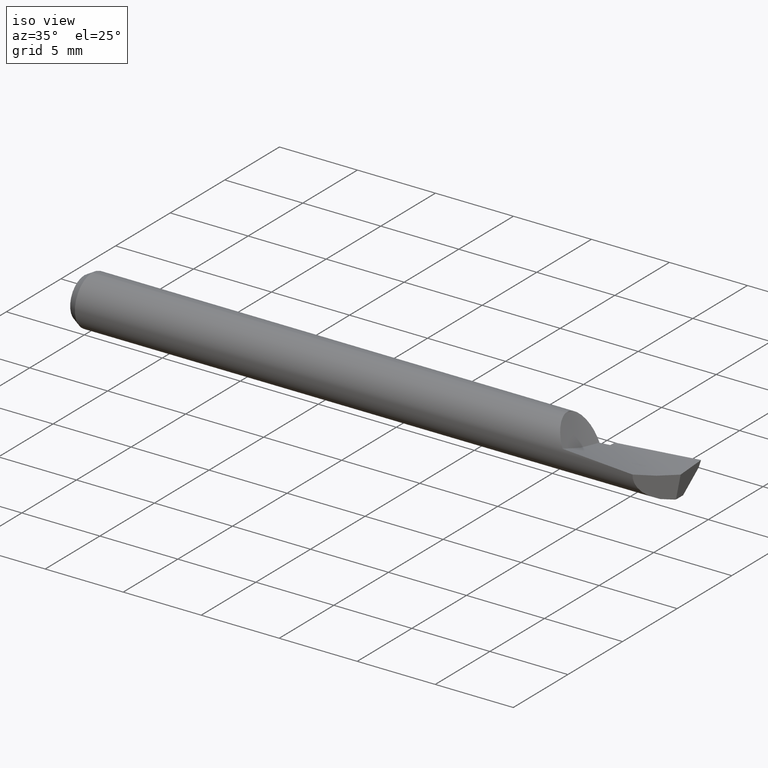
[diagram: clean part render]
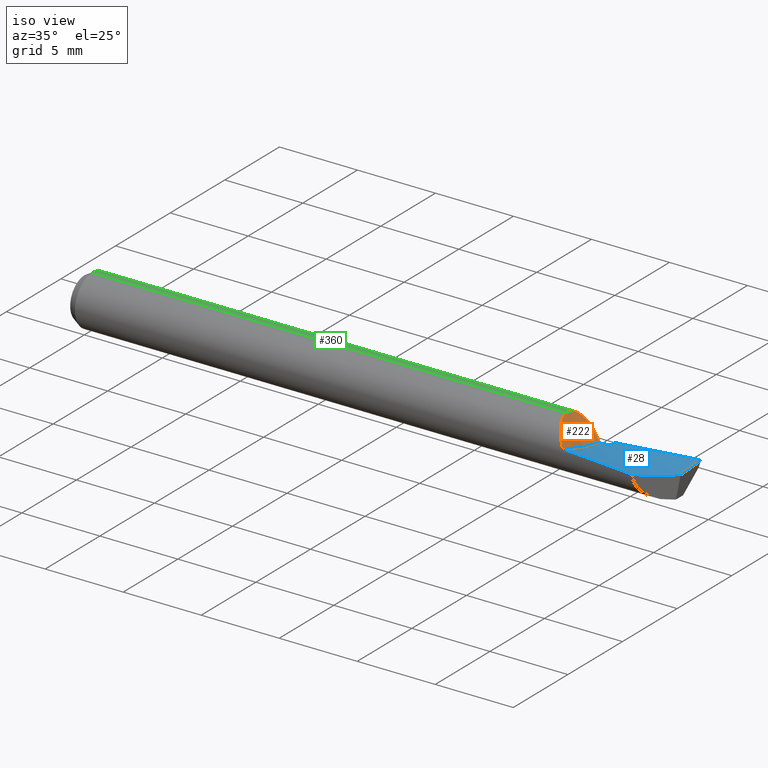
[diagram: same view with three faces highlighted in distinct colors, each labeled with its STEP entity id]
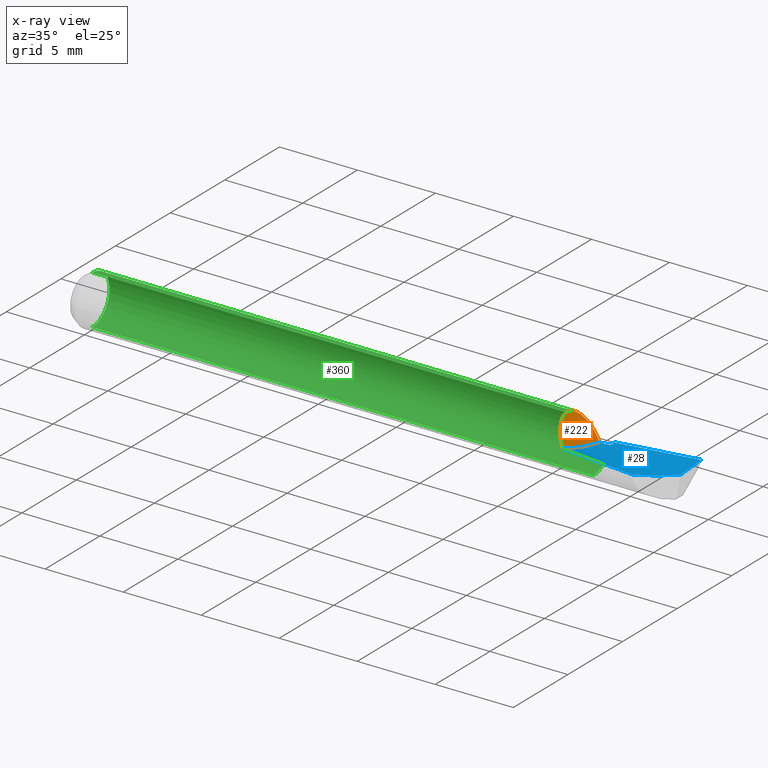
[diagram: x-ray of the same camera — body ghosted, the three highlighted faces saturated]
A machine part, iso view with three faces highlighted in distinct colors.
The next image is the same camera in x-ray (body ghosted, the three faces saturated) — at least one of them is partly hidden behind the body in this view.
Their STEP definitions:

[orange] entity #222 — the highlighted face is a freeform B-spline surface patch.
#10 = CARTESIAN_POINT ( 'NONE',  ( 1.215341234382241620, 0.0004982669162004980945, 0.06239850635911061566 ) ) ;
#11 = VERTEX_POINT ( 'NONE', #286 ) ;
#12 = CARTESIAN_POINT ( 'NONE',  ( 1.215062640720519171, 0.002482261465665115772, 0.06235255943866734735 ) ) ;
#14 = CARTESIAN_POINT ( 'NONE',  ( 1.233516715122231489, 0.05873520941118057226, 0.02125097969850281085 ) ) ;
#24 = CARTESIAN_POINT ( 'NONE',  ( 1.244636479562499565, 0.06229732504898780748, 0.003580627249325354054 ) ) ;
#25 = CARTESIAN_POINT ( 'NONE',  ( 1.228938620844154173, -0.03954811019755048729, 0.04826782345320551615 ) ) ;
#32 = CARTESIAN_POINT ( 'NONE',  ( 1.252629383386663964, -0.02240979440101401043, -0.002553096178516221261 ) ) ;
#39 = ORIENTED_EDGE ( 'NONE', *, *, #424, .F. ) ;
#53 = CARTESIAN_POINT ( 'NONE',  ( 1.214999999999999858, 0.02656827298811766797, 0.05646137503133320107 ) ) ;
#55 = CARTESIAN_POINT ( 'NONE',  ( 1.215161247682621681, 0.001740713131355195020, 0.06237917047363608636 ) ) ;
#57 = CARTESIAN_POINT ( 'NONE',  ( 1.231911170695153324, 0.05764547565928701545, 0.02389072257668140714 ) ) ;
#65 = EDGE_CURVE ( 'NONE', #518, #89, #414, .T. ) ;
#73 = CARTESIAN_POINT ( 'NONE',  ( 1.242485752543471822, 0.06202582730458720134, 0.006956310956432748376 ) ) ;
#74 = CARTESIAN_POINT ( 'NONE',  ( 1.249835296245995098, -0.06108238399090171883, 0.01275548376142715545 ) ) ;
#78 = CARTESIAN_POINT ( 'NONE',  ( 1.231210198614224982, -0.04348049364634020558, 0.04498844483085986945 ) ) ;
#80 = CARTESIAN_POINT ( 'NONE',  ( 1.251846361524282303, 0.06201947540203197468, -0.007712021355594155143 ) ) ;
#81 = CARTESIAN_POINT ( 'NONE',  ( 1.228601843419931727, -0.03895000380799452933, 0.04875114253357506339 ) ) ;
#84 = CARTESIAN_POINT ( 'NONE',  ( 1.214999999999997859, 0.03552124287360624438, 0.05262055221089354667 ) ) ;
#89 = VERTEX_POINT ( 'NONE', #74 ) ;
#90 = EDGE_CURVE ( 'NONE', #89, #11, #445, .T. ) ;
#99 = VERTEX_POINT ( 'NONE', #436 ) ;
#103 = CARTESIAN_POINT ( 'NONE',  ( 1.230937209793407039, 0.05695609247891080668, 0.02549987211742123921 ) ) ;
#112 = CARTESIAN_POINT ( 'NONE',  ( 1.256278768973220217, 0.06077601470096085506, -0.01456594108188619639 ) ) ;
#114 = CARTESIAN_POINT ( 'NONE',  ( 1.244214353131710027, 0.06225665313612734758, 0.004241600538668392761 ) ) ;
#120 = B_SPLINE_CURVE_WITH_KNOTS ( 'NONE', 3,
 ( #331, #144, #376, #53 ),
 .UNSPECIFIED., .F., .F.,
 ( 4, 4 ),
 ( 0.000000000000000000, 1.000000000000000000 ),
 .UNSPECIFIED. ) ;
#144 = CARTESIAN_POINT ( 'NONE',  ( 1.214999999999999858, 0.01083956874227856755, 0.06037428967426877735 ) ) ;
#146 = CARTESIAN_POINT ( 'NONE',  ( 1.229120050926931107, 0.05549586416279576190, 0.02854872319384249915 ) ) ;
#159 = CARTESIAN_POINT ( 'NONE',  ( 1.249835296245995098, -0.06108238399090171883, 0.01275548376142715545 ) ) ;
#170 = CARTESIAN_POINT ( 'NONE',  ( 1.215416354742557825, -3.096158160012943776E-07, 0.06240138776565496564 ) ) ;
#176 = B_SPLINE_CURVE_WITH_KNOTS ( 'NONE', 3,
 ( #191, #333, #372, #238, #193, #241, #547, #146, #329, #103, #288, #197, #466, #57, #14, #370, #549, #252, #381, #73, #259, #114, #555, #24, #305, #390, #80, #112, #561, #346 ),
 .UNSPECIFIED., .F., .F.,
 ( 4, 2, 2, 2, 1, 1, 1, 2, 2, 2, 2, 1, 1, 1, 2, 2, 2, 4 ),
 ( 0.000000000000000000, 0.2500000000000091593, 0.3750000000000144329, 0.4375000000000178191, 0.4687500000000195399, 0.4843750000000187628, 0.4921875000000165978, 0.4960937500000154876, 0.5000000000000144329, 0.6249999999999950040, 0.6874999999999875655, 0.7187499999999837907, 0.7343749999999819034, 0.7421874999999810152, 0.7460937499999804601, 0.7499999999999799050, 0.8749999999999900080, 1.000000000000000000 ),
 .UNSPECIFIED. ) ;
#186 = CARTESIAN_POINT ( 'NONE',  ( 1.215000000000000302, 0.07563097999572351848, 0.04879436779900076654 ) ) ;
#191 = CARTESIAN_POINT ( 'NONE',  ( 1.214999999999999858, 0.02656827298811766797, 0.05646137503133320107 ) ) ;
#193 = CARTESIAN_POINT ( 'NONE',  ( 1.223683417556308273, 0.04962681717030364981, 0.03804160079550419904 ) ) ;
#197 = CARTESIAN_POINT ( 'NONE',  ( 1.231665086290065991, 0.05747591180185984000, 0.02429602497390106683 ) ) ;
#201 = CARTESIAN_POINT ( 'NONE',  ( 1.215416354742557825, -3.096158160012943776E-07, 0.06240138776565496564 ) ) ;
#222 = ADVANCED_FACE ( 'NONE', ( #365 ), #225, .T. ) ;
#225 = B_SPLINE_SURFACE_WITH_KNOTS ( 'NONE', 1, 3, ( 
 ( #309, #488, #84, #186 ),
 ( #277, #267, #320, #355 ) ),
 .UNSPECIFIED., .F., .F., .F.,
 ( 2, 2 ),
 ( 4, 4 ),
 ( 0.000000000000000000, 1.000000000000000000 ),
 ( 0.01047409669607552753, 0.01355842305451047079 ),
 .UNSPECIFIED. ) ;
#227 = ORIENTED_EDGE ( 'NONE', *, *, #90, .F. ) ;
#238 = CARTESIAN_POINT ( 'NONE',  ( 1.222031673769640170, 0.04711422705662771104, 0.04109495911430026405 ) ) ;
#241 = CARTESIAN_POINT ( 'NONE',  ( 1.226518768419224914, 0.05298604985758788993, 0.03301960953545664962 ) ) ;
#244 = CARTESIAN_POINT ( 'NONE',  ( 1.215385474800205978, 0.0002051950932025594699, 0.06240000065721609118 ) ) ;
#252 = CARTESIAN_POINT ( 'NONE',  ( 1.239720982764604962, 0.06139425361475552012, 0.01132678698372264862 ) ) ;
#253 = CARTESIAN_POINT ( 'NONE',  ( 1.249835296245995098, -0.06108238399090171883, 0.01275548376142715545 ) ) ;
#259 = CARTESIAN_POINT ( 'NONE',  ( 1.243630165472373816, 0.06219032946664695277, 0.005157620384251591396 ) ) ;
#265 = CARTESIAN_POINT ( 'NONE',  ( 1.255365967155684714, 0.01860310065129406470, -0.01275313803215253824 ) ) ;
#267 = CARTESIAN_POINT ( 'NONE',  ( 1.252524114887808349, -0.02361430046662641238, -0.002738913424446218561 ) ) ;
#277 = CARTESIAN_POINT ( 'NONE',  ( 1.249477145073455864, -0.06702986064730614979, 0.01515205516212932320 ) ) ;
#286 = CARTESIAN_POINT ( 'NONE',  ( 1.215416354742557825, -3.096158160012943776E-07, 0.06240138776565496564 ) ) ;
#288 = CARTESIAN_POINT ( 'NONE',  ( 1.231445256067857930, 0.05732214278859906059, 0.02465872129221273468 ) ) ;
#298 = CARTESIAN_POINT ( 'NONE',  ( 1.221587132636402728, -0.02369398746549044796, 0.05784362774931333523 ) ) ;
#305 = CARTESIAN_POINT ( 'NONE',  ( 1.244682950516643016, 0.06230162282814328406, 0.003507885105012513525 ) ) ;
#309 = CARTESIAN_POINT ( 'NONE',  ( 1.214999999999999192, -0.04165141917533745491, 0.07758982109010667538 ) ) ;
#320 = CARTESIAN_POINT ( 'NONE',  ( 1.255679714658388901, 0.02260273811150143378, -0.01405578826490063056 ) ) ;
#329 = CARTESIAN_POINT ( 'NONE',  ( 1.229940680887320781, 0.05619540205819162360, 0.02716132427227490459 ) ) ;
#331 = CARTESIAN_POINT ( 'NONE',  ( 1.214999999999999858, 0.002974872207176468188, 0.06232904728415931961 ) ) ;
#333 = CARTESIAN_POINT ( 'NONE',  ( 1.215919365933783247, 0.03286560805013540726, 0.05349813510236401531 ) ) ;
#345 = CARTESIAN_POINT ( 'NONE',  ( 1.216396980198236388, -0.006366907595454449412, 0.06239997961777467989 ) ) ;
#346 = CARTESIAN_POINT ( 'NONE',  ( 1.258103799009599344, 0.05994036010015910132, -0.01734685075347273953 ) ) ;
#349 = CARTESIAN_POINT ( 'NONE',  ( 1.240848254320486399, -0.05547916175596864785, 0.02939914910442548851 ) ) ;
#355 = CARTESIAN_POINT ( 'NONE',  ( 1.258707990173291602, 0.06920770962084182854, -0.01828448365379964358 ) ) ;
#362 = EDGE_CURVE ( 'NONE', #99, #449, #120, .T. ) ;
#365 = FACE_OUTER_BOUND ( 'NONE', #437, .T. ) ;
#369 = ORIENTED_EDGE ( 'NONE', *, *, #422, .F. ) ;
#370 = CARTESIAN_POINT ( 'NONE',  ( 1.235365719629867520, 0.05976868096482233078, 0.01827150850478869229 ) ) ;
#372 = CARTESIAN_POINT ( 'NONE',  ( 1.217791912775463281, 0.03901110486524265314, 0.04930555668675659642 ) ) ;
#376 = CARTESIAN_POINT ( 'NONE',  ( 1.214999999999999858, 0.01870421387237469757, 0.05841845503490347702 ) ) ;
#381 = CARTESIAN_POINT ( 'NONE',  ( 1.241545905558308682, 0.06183427986900100898, 0.008439754330189170109 ) ) ;
#387 = CARTESIAN_POINT ( 'NONE',  ( 1.218061978292365843, -0.01325395992816112527, 0.06141835067051629876 ) ) ;
#390 = CARTESIAN_POINT ( 'NONE',  ( 1.248761015859466639, 0.06264091427386640765, -0.002870530865508865576 ) ) ;
#392 = CARTESIAN_POINT ( 'NONE',  ( 1.245013758512700131, -0.05916887957875072157, 0.02192302009893481660 ) ) ;
#396 = CARTESIAN_POINT ( 'NONE',  ( 1.229062183228580629, -0.03976434486288435433, 0.04808989442668241271 ) ) ;
#414 = B_SPLINE_CURVE_WITH_KNOTS ( 'NONE', 3,
 ( #441, #265, #32, #253 ),
 .UNSPECIFIED., .F., .F.,
 ( 4, 4 ),
 ( 0.000000000000000000, 1.000000000000000000 ),
 .UNSPECIFIED. ) ;
#420 = CARTESIAN_POINT ( 'NONE',  ( 1.214999999999999858, 0.002974872207176468188, 0.06232904728415931961 ) ) ;
#422 = EDGE_CURVE ( 'NONE', #11, #99, #570, .T. ) ;
#424 = EDGE_CURVE ( 'NONE', #449, #518, #176, .T. ) ;
#430 = CARTESIAN_POINT ( 'NONE',  ( 1.258103799009599344, 0.05994036010015910132, -0.01734685075347273953 ) ) ;
#431 = CARTESIAN_POINT ( 'NONE',  ( 1.226412297520227401, -0.03485729311681249470, 0.05182606305332643215 ) ) ;
#436 = CARTESIAN_POINT ( 'NONE',  ( 1.214999999999999858, 0.002974872207176468188, 0.06232904728415931961 ) ) ;
#437 = EDGE_LOOP ( 'NONE', ( #227, #506, #39, #497, #369 ) ) ;
#441 = CARTESIAN_POINT ( 'NONE',  ( 1.258103799009599344, 0.05994036010015910132, -0.01734685075347273953 ) ) ;
#445 = B_SPLINE_CURVE_WITH_KNOTS ( 'NONE', 3,
 ( #159, #392, #349, #484, #78, #396, #25, #562, #567, #81, #559, #569, #431, #522, #528, #298, #387, #345, #170 ),
 .UNSPECIFIED., .F., .F.,
 ( 4, 2, 2, 2, 2, 1, 1, 1, 2, 2, 4 ),
 ( 0.000000000000000000, 0.2421868667587710744, 0.4843737335175421488, 0.4995104126899635455, 0.5032945824830675763, 0.5070787522761716071, 0.5146470918623782254, 0.5449204502072071410, 0.6054671668968648612, 0.7265606002761813009, 0.9687474670348142913 ),
 .UNSPECIFIED. ) ;
#449 = VERTEX_POINT ( 'NONE', #524 ) ;
#466 = CARTESIAN_POINT ( 'NONE',  ( 1.231812105572558602, 0.05757772828180913322, 0.02405374134919043005 ) ) ;
#484 = CARTESIAN_POINT ( 'NONE',  ( 1.233946474371248936, -0.04763377131145410392, 0.04090563760482492095 ) ) ;
#488 = CARTESIAN_POINT ( 'NONE',  ( 1.215000000000000524, -0.004204422947918319553, 0.06235303540326810751 ) ) ;
#497 = ORIENTED_EDGE ( 'NONE', *, *, #362, .F. ) ;
#505 = CARTESIAN_POINT ( 'NONE',  ( 1.215268135577961539, 0.0009956878743096362824, 0.06239255140980130149 ) ) ;
#506 = ORIENTED_EDGE ( 'NONE', *, *, #65, .F. ) ;
#518 = VERTEX_POINT ( 'NONE', #430 ) ;
#522 = CARTESIAN_POINT ( 'NONE',  ( 1.225209866058329267, -0.03231902831935336978, 0.05341435669382066376 ) ) ;
#524 = CARTESIAN_POINT ( 'NONE',  ( 1.214999999999999858, 0.02656827298811766797, 0.05646137503133320107 ) ) ;
#528 = CARTESIAN_POINT ( 'NONE',  ( 1.222933460284889140, -0.02718736288394425424, 0.05630292771698657689 ) ) ;
#547 = CARTESIAN_POINT ( 'NONE',  ( 1.227523507904015876, 0.05403744779993378128, 0.03127229406305051529 ) ) ;
#549 = CARTESIAN_POINT ( 'NONE',  ( 1.238577395804298487, 0.06102516767406157561, 0.01314476025576302200 ) ) ;
#555 = CARTESIAN_POINT ( 'NONE',  ( 1.244467286670329909, 0.06228153693397478485, 0.003845485261938989211 ) ) ;
#559 = CARTESIAN_POINT ( 'NONE',  ( 1.228432973414682605, -0.03864719468563467680, 0.04899255897457841652 ) ) ;
#561 = CARTESIAN_POINT ( 'NONE',  ( 1.257625830757342689, 0.06015420121663177938, -0.01660806877866536843 ) ) ;
#562 = CARTESIAN_POINT ( 'NONE',  ( 1.228787657190854921, -0.03928094514397559300, 0.04848476138092456394 ) ) ;
#567 = CARTESIAN_POINT ( 'NONE',  ( 1.228714757947260372, -0.03915156276872309993, 0.04858942094467142564 ) ) ;
#569 = CARTESIAN_POINT ( 'NONE',  ( 1.227819303038613086, -0.03753182644841837612, 0.04986493578756435313 ) ) ;
#570 = B_SPLINE_CURVE_WITH_KNOTS ( 'NONE', 3,
 ( #201, #244, #10, #505, #55, #12, #420 ),
 .UNSPECIFIED., .F., .F.,
 ( 4, 2, 1, 4 ),
 ( 0.9687474670348142913, 0.9765606002761106907, 0.9843737335174070902, 1.000000000000000000 ),
 .UNSPECIFIED. ) ;

[blue] entity #28 — the highlighted face is a freeform B-spline surface patch.
#7 = CARTESIAN_POINT ( 'NONE',  ( 1.338643880694338151, -0.06220352800694264883, 0.007386643929259769856 ) ) ;
#18 = CARTESIAN_POINT ( 'NONE',  ( 0.7962962962962978342, -0.04210506146454852383, 0.01909589215890198852 ) ) ;
#20 = CARTESIAN_POINT ( 'NONE',  ( 1.427229071682861727, -0.06237092831713793306, 0.001904547415644643844 ) ) ;
#28 = ADVANCED_FACE ( 'NONE', ( #289 ), #421, .T. ) ;
#32 = CARTESIAN_POINT ( 'NONE',  ( 1.252629383386663964, -0.02240979440101401043, -0.002553096178516221261 ) ) ;
#48 = B_SPLINE_CURVE_WITH_KNOTS ( 'NONE', 3,
 ( #326, #105, #507, #152 ),
 .UNSPECIFIED., .F., .F.,
 ( 4, 4 ),
 ( 2.322062217367471668E-16, 0.001824263073512901508 ),
 .UNSPECIFIED. ) ;
#54 = CARTESIAN_POINT ( 'NONE',  ( 0.7962962962962979452, -0.09302167809518145647, 0.09216304034620897978 ) ) ;
#56 = CARTESIAN_POINT ( 'NONE',  ( 0.9722222222222235422, -0.1092725087323409422, 0.07576080870725090954 ) ) ;
#58 = CARTESIAN_POINT ( 'NONE',  ( 1.499999999999999778, -0.04452895123775297420, -0.01243630973977583737 ) ) ;
#65 = EDGE_CURVE ( 'NONE', #518, #89, #414, .T. ) ;
#66 = ORIENTED_EDGE ( 'NONE', *, *, #374, .F. ) ;
#67 = CARTESIAN_POINT ( 'NONE',  ( 1.285000000000000586, 0.06038028350102195990, -0.01574742405834713907 ) ) ;
#74 = CARTESIAN_POINT ( 'NONE',  ( 1.249835296245995098, -0.06108238399090171883, 0.01275548376142715545 ) ) ;
#89 = VERTEX_POINT ( 'NONE', #74 ) ;
#92 = CARTESIAN_POINT ( 'NONE',  ( 1.500000000000000222, 0.08049999999999998823, 0.000000000000000000 ) ) ;
#102 = CARTESIAN_POINT ( 'NONE',  ( 1.324074074074074403, 0.04233609429018298648, -0.02028796526564322078 ) ) ;
#105 = CARTESIAN_POINT ( 'NONE',  ( 1.499312381576385134, 0.05682575062050140152, -0.003917414861184890032 ) ) ;
#131 = ORIENTED_EDGE ( 'NONE', *, *, #482, .T. ) ;
#137 = ORIENTED_EDGE ( 'NONE', *, *, #565, .F. ) ;
#139 = CARTESIAN_POINT ( 'NONE',  ( 1.249835296245995098, -0.06108238399090171883, 0.01275548376142715545 ) ) ;
#143 = ORIENTED_EDGE ( 'NONE', *, *, #218, .T. ) ;
#152 = CARTESIAN_POINT ( 'NONE',  ( 1.498583317375058899, 0.008983317375058863519, -0.006454686212403699941 ) ) ;
#162 = ORIENTED_EDGE ( 'NONE', *, *, #65, .T. ) ;
#163 = CARTESIAN_POINT ( 'NONE',  ( 1.285000000000000364, 0.07222602073669348588, -0.01668732863539127212 ) ) ;
#166 = CARTESIAN_POINT ( 'NONE',  ( 1.450816366310603511, -0.03878363368939651695, -0.004285371699869884761 ) ) ;
#189 = CARTESIAN_POINT ( 'NONE',  ( 1.427229071682861727, -0.06237092831713793306, 0.001904547415644643844 ) ) ;
#190 = ORIENTED_EDGE ( 'NONE', *, *, #525, .T. ) ;
#194 = CARTESIAN_POINT ( 'NONE',  ( 1.499999999999999778, 0.1304999999999998384, 0.01080780280633125007 ) ) ;
#199 = CARTESIAN_POINT ( 'NONE',  ( 1.148148148148148806, -0.04609699532909253966, 0.003543489792202707874 ) ) ;
#202 = CARTESIAN_POINT ( 'NONE',  ( 1.499999999999999778, 0.04452895123775293951, -0.01243630973977578186 ) ) ;
#214 = CARTESIAN_POINT ( 'NONE',  ( 1.500000000000000222, 0.08049999999999998823, 0.000000000000000000 ) ) ;
#218 = EDGE_CURVE ( 'NONE', #89, #385, #339, .T. ) ;
#219 = CARTESIAN_POINT ( 'NONE',  ( 1.284999999999999254, 0.07815578551701131416, -0.01699865729007948509 ) ) ;
#221 = VERTEX_POINT ( 'NONE', #92 ) ;
#236 = CARTESIAN_POINT ( 'NONE',  ( 1.427229071682861727, -0.06237092831713793306, 0.001904547415644643844 ) ) ;
#237 = CARTESIAN_POINT ( 'NONE',  ( 0.9722222222222234311, -0.04547218247286216597, 0.01167163379831380812 ) ) ;
#239 = CARTESIAN_POINT ( 'NONE',  ( 0.9722222222222235422, 0.1202470393179030789, -0.05675236414383861422 ) ) ;
#249 = CARTESIAN_POINT ( 'NONE',  ( 1.498583317375058899, 0.008983317375058863519, -0.006454686212403699941 ) ) ;
#253 = CARTESIAN_POINT ( 'NONE',  ( 1.249835296245995098, -0.06108238399090171883, 0.01275548376142715545 ) ) ;
#265 = CARTESIAN_POINT ( 'NONE',  ( 1.255365967155684714, 0.01860310065129406470, -0.01275313803215253824 ) ) ;
#269 = CARTESIAN_POINT ( 'NONE',  ( 1.285000000000000586, 0.06038028350102195990, -0.01574742405834713907 ) ) ;
#270 = EDGE_LOOP ( 'NONE', ( #66, #190, #131, #399, #162, #143, #137 ) ) ;
#289 = FACE_OUTER_BOUND ( 'NONE', #270, .T. ) ;
#293 = CARTESIAN_POINT ( 'NONE',  ( 1.285000000000000586, 0.06038028350102195990, -0.01574742405834713907 ) ) ;
#294 = CARTESIAN_POINT ( 'NONE',  ( 1.324074074074074625, -0.1285942927630670529, 0.03381847378878584387 ) ) ;
#295 = CARTESIAN_POINT ( 'NONE',  ( 1.428339645624105758, 0.08031556160471547967, -0.005811896307208636557 ) ) ;
#302 =( BOUNDED_CURVE ( )  B_SPLINE_CURVE ( 3, ( #386, #163, #344, #293 ),
 .UNSPECIFIED., .F., .T. ) 
 B_SPLINE_CURVE_WITH_KNOTS ( ( 4, 4 ),
 ( 8.400482781909875574E-05, 0.0005361899232507196487 ),
 .UNSPECIFIED. ) 
 CURVE ( )  GEOMETRIC_REPRESENTATION_ITEM ( )  RATIONAL_B_SPLINE_CURVE ( ( 0.9818899732500591115, 0.9809521610757138133, 0.9801186838641855470, 0.9793895416154743128 ) ) 
 REPRESENTATION_ITEM ( '' )  );
#317 = VERTEX_POINT ( 'NONE', #269 ) ;
#326 = CARTESIAN_POINT ( 'NONE',  ( 1.500000000000000222, 0.08049999999999998823, 0.000000000000000000 ) ) ;
#327 = CARTESIAN_POINT ( 'NONE',  ( 1.148148148148148806, -0.1189334007477039767, 0.05478964124801836283 ) ) ;
#336 = CARTESIAN_POINT ( 'NONE',  ( 1.356669798653250103, 0.07952544297217399583, -0.01147438205678345639 ) ) ;
#339 =( BOUNDED_CURVE ( )  B_SPLINE_CURVE ( 2, ( #139, #7, #189 ),
 .UNSPECIFIED., .F., .F. ) 
 B_SPLINE_CURVE_WITH_KNOTS ( ( 3, 3 ),
 ( 0.6451632367925622669, 0.8958541847013351545 ),
 .UNSPECIFIED. ) 
 CURVE ( )  GEOMETRIC_REPRESENTATION_ITEM ( )  RATIONAL_B_SPLINE_CURVE ( ( 0.9803429797851890282, 0.9771918254678608751, 0.9815758700507004608 ) ) 
 REPRESENTATION_ITEM ( '' )  );
#343 = B_SPLINE_CURVE_WITH_KNOTS ( 'NONE', 3,
 ( #214, #295, #336, #383 ),
 .UNSPECIFIED., .F., .F.,
 ( 4, 4 ),
 ( 6.960919512205830802E-18, 0.005478461887785326598 ),
 .UNSPECIFIED. ) ;
#344 = CARTESIAN_POINT ( 'NONE',  ( 1.285000000000000364, 0.06630021874635304291, -0.01627029642031938006 ) ) ;
#361 =( BOUNDED_CURVE ( )  B_SPLINE_CURVE ( 2, ( #67, #515, #427 ),
 .UNSPECIFIED., .F., .F. ) 
 B_SPLINE_CURVE_WITH_KNOTS ( ( 3, 3 ),
 ( 0.3051250383461896476, 0.3431339468990801667 ),
 .UNSPECIFIED. ) 
 CURVE ( )  GEOMETRIC_REPRESENTATION_ITEM ( )  RATIONAL_B_SPLINE_CURVE ( ( 0.9793895416153377553, 0.9796407601735995785, 0.9800651948146839043 ) ) 
 REPRESENTATION_ITEM ( '' )  );
#371 = CARTESIAN_POINT ( 'NONE',  ( 1.324074074074074625, 0.1324057072369326793, -0.01220286817612339751 ) ) ;
#373 = CARTESIAN_POINT ( 'NONE',  ( 1.148148148148148806, 0.03759005844981144068, -0.02691610677675318822 ) ) ;
#374 = EDGE_CURVE ( 'NONE', #221, #502, #48, .T. ) ;
#383 = CARTESIAN_POINT ( 'NONE',  ( 1.284999999999999254, 0.07815578551701131416, -0.01699865729007948509 ) ) ;
#385 = VERTEX_POINT ( 'NONE', #236 ) ;
#386 = CARTESIAN_POINT ( 'NONE',  ( 1.284999999999999254, 0.07815578551701131416, -0.01699865729007948509 ) ) ;
#393 = B_SPLINE_CURVE_WITH_KNOTS ( 'NONE', 3,
 ( #249, #553, #166, #20 ),
 .UNSPECIFIED., .F., .F.,
 ( 4, 4 ),
 ( 5.063506832122312171E-05, 0.002622531152721891985 ),
 .UNSPECIFIED. ) ;
#399 = ORIENTED_EDGE ( 'NONE', *, *, #563, .T. ) ;
#413 = CARTESIAN_POINT ( 'NONE',  ( 0.9722222222222234311, 0.03284402260943989488, -0.03354424828786316953 ) ) ;
#414 = B_SPLINE_CURVE_WITH_KNOTS ( 'NONE', 3,
 ( #441, #265, #32, #253 ),
 .UNSPECIFIED., .F., .F.,
 ( 4, 4 ),
 ( 0.000000000000000000, 1.000000000000000000 ),
 .UNSPECIFIED. ) ;
#419 = CARTESIAN_POINT ( 'NONE',  ( 1.324074074074074403, -0.04672180818532290641, -0.004584654213908389772 ) ) ;
#421 =( BOUNDED_SURFACE ( )  B_SPLINE_SURFACE ( 3, 2, ( 
 ( #467, #294, #327, #56, #54 ),
 ( #58, #419, #199, #237, #18 ),
 ( #202, #102, #373, #413, #465 ),
 ( #194, #371, #548, #239, #550 ) ),
 .UNSPECIFIED., .F., .F., .F. ) 
 B_SPLINE_SURFACE_WITH_KNOTS ( ( 4, 4 ),
 ( 3, 2, 3 ),
 ( 0.000000000000000000, 1.000000000000000000 ),
 ( 0.000000000000000000, 0.5000000000000000000, 1.000000000000000000 ),
 .UNSPECIFIED. ) 
 GEOMETRIC_REPRESENTATION_ITEM ( )  RATIONAL_B_SPLINE_SURFACE ( (
 ( 1.000000000000000000, 0.9848077530122080203, 1.000000000000000000, 0.9848077530122080203, 1.000000000000000000),
 ( 0.9768925337527232244, 0.9620513410994219194, 0.9768925337527232244, 0.9620513410994219194, 0.9768925337527232244),
 ( 0.9768925337527232244, 0.9620513410994219194, 0.9768925337527232244, 0.9620513410994219194, 0.9768925337527232244),
 ( 1.000000000000000000, 0.9848077530122080203, 1.000000000000000000, 0.9848077530122080203, 1.000000000000000000) ) ) 
 REPRESENTATION_ITEM ( '' )  SURFACE ( )  );
#427 = CARTESIAN_POINT ( 'NONE',  ( 1.258103799009599344, 0.05994036010015910132, -0.01734685075347273953 ) ) ;
#430 = CARTESIAN_POINT ( 'NONE',  ( 1.258103799009599344, 0.05994036010015910132, -0.01734685075347273953 ) ) ;
#440 = CARTESIAN_POINT ( 'NONE',  ( 1.498583317375058899, 0.008983317375058863519, -0.006454686212403699941 ) ) ;
#441 = CARTESIAN_POINT ( 'NONE',  ( 1.258103799009599344, 0.05994036010015910132, -0.01734685075347273953 ) ) ;
#465 = CARTESIAN_POINT ( 'NONE',  ( 0.7962962962962978342, 0.02611724984264466101, -0.03814942409702533344 ) ) ;
#467 = CARTESIAN_POINT ( 'NONE',  ( 1.499999999999999778, -0.1304999999999998661, 0.01080780280633118241 ) ) ;
#482 = EDGE_CURVE ( 'NONE', #573, #317, #302, .T. ) ;
#502 = VERTEX_POINT ( 'NONE', #440 ) ;
#507 = CARTESIAN_POINT ( 'NONE',  ( 1.498841849906522361, 0.03298158163285520167, -0.006054790801844065103 ) ) ;
#515 = CARTESIAN_POINT ( 'NONE',  ( 1.271542618583565876, 0.06017095241867582989, -0.01655006136474427084 ) ) ;
#518 = VERTEX_POINT ( 'NONE', #430 ) ;
#525 = EDGE_CURVE ( 'NONE', #221, #573, #343, .T. ) ;
#548 = CARTESIAN_POINT ( 'NONE',  ( 1.148148148148148806, 0.1263263732774178583, -0.03447761615998099632 ) ) ;
#550 = CARTESIAN_POINT ( 'NONE',  ( 0.7962962962962979452, 0.1069159215588716128, -0.07560452578197750240 ) ) ;
#553 = CARTESIAN_POINT ( 'NONE',  ( 1.474601490186479236, -0.01499850981352074571, -0.007065313670182453952 ) ) ;
#563 = EDGE_CURVE ( 'NONE', #317, #518, #361, .T. ) ;
#565 = EDGE_CURVE ( 'NONE', #502, #385, #393, .T. ) ;
#573 = VERTEX_POINT ( 'NONE', #219 ) ;

[green] entity #360 — the highlighted cylindrical surface (edge-blend (fillet) strip) has radius 1.585 mm, axis along (-1, -0, -0).
#2 = CARTESIAN_POINT ( 'NONE',  ( 1.285000000000000142, 0.000000000000000000, -0.06239999999999999020 ) ) ;
#10 = CARTESIAN_POINT ( 'NONE',  ( 1.215341234382241620, 0.0004982669162004980945, 0.06239850635911061566 ) ) ;
#11 = VERTEX_POINT ( 'NONE', #286 ) ;
#12 = CARTESIAN_POINT ( 'NONE',  ( 1.215062640720519171, 0.002482261465665115772, 0.06235255943866734735 ) ) ;
#14 = CARTESIAN_POINT ( 'NONE',  ( 1.233516715122231489, 0.05873520941118057226, 0.02125097969850281085 ) ) ;
#24 = CARTESIAN_POINT ( 'NONE',  ( 1.244636479562499565, 0.06229732504898780748, 0.003580627249325354054 ) ) ;
#30 = LINE ( 'NONE', #160, #389 ) ;
#55 = CARTESIAN_POINT ( 'NONE',  ( 1.215161247682621681, 0.001740713131355195020, 0.06237917047363608636 ) ) ;
#57 = CARTESIAN_POINT ( 'NONE',  ( 1.231911170695153324, 0.05764547565928701545, 0.02389072257668140714 ) ) ;
#61 = CARTESIAN_POINT ( 'NONE',  ( 0.02000000000000000042, 0.000000000000000000, 0.06239999999999999714 ) ) ;
#67 = CARTESIAN_POINT ( 'NONE',  ( 1.285000000000000586, 0.06038028350102195990, -0.01574742405834713907 ) ) ;
#73 = CARTESIAN_POINT ( 'NONE',  ( 1.242485752543471822, 0.06202582730458720134, 0.006956310956432748376 ) ) ;
#80 = CARTESIAN_POINT ( 'NONE',  ( 1.251846361524282303, 0.06201947540203197468, -0.007712021355594155143 ) ) ;
#86 = CARTESIAN_POINT ( 'NONE',  ( 0.02000000000000000042, 7.641796026679484656E-18, -0.06239999999999999714 ) ) ;
#93 = EDGE_CURVE ( 'NONE', #99, #449, #538, .T. ) ;
#99 = VERTEX_POINT ( 'NONE', #436 ) ;
#103 = CARTESIAN_POINT ( 'NONE',  ( 1.230937209793407039, 0.05695609247891080668, 0.02549987211742123921 ) ) ;
#112 = CARTESIAN_POINT ( 'NONE',  ( 1.256278768973220217, 0.06077601470096085506, -0.01456594108188619639 ) ) ;
#114 = CARTESIAN_POINT ( 'NONE',  ( 1.244214353131710027, 0.06225665313612734758, 0.004241600538668392761 ) ) ;
#116 = ORIENTED_EDGE ( 'NONE', *, *, #422, .T. ) ;
#126 = CARTESIAN_POINT ( 'NONE',  ( 1.214999999999999858, 0.000000000000000000, 0.000000000000000000 ) ) ;
#146 = CARTESIAN_POINT ( 'NONE',  ( 1.229120050926931107, 0.05549586416279576190, 0.02854872319384249915 ) ) ;
#160 = CARTESIAN_POINT ( 'NONE',  ( 0.000000000000000000, 0.000000000000000000, 0.06239999999999999714 ) ) ;
#161 = DIRECTION ( 'NONE',  ( 0.000000000000000000, 0.000000000000000000, 1.000000000000000000 ) ) ;
#176 = B_SPLINE_CURVE_WITH_KNOTS ( 'NONE', 3,
 ( #191, #333, #372, #238, #193, #241, #547, #146, #329, #103, #288, #197, #466, #57, #14, #370, #549, #252, #381, #73, #259, #114, #555, #24, #305, #390, #80, #112, #561, #346 ),
 .UNSPECIFIED., .F., .F.,
 ( 4, 2, 2, 2, 1, 1, 1, 2, 2, 2, 2, 1, 1, 1, 2, 2, 2, 4 ),
 ( 0.000000000000000000, 0.2500000000000091593, 0.3750000000000144329, 0.4375000000000178191, 0.4687500000000195399, 0.4843750000000187628, 0.4921875000000165978, 0.4960937500000154876, 0.5000000000000144329, 0.6249999999999950040, 0.6874999999999875655, 0.7187499999999837907, 0.7343749999999819034, 0.7421874999999810152, 0.7460937499999804601, 0.7499999999999799050, 0.8749999999999900080, 1.000000000000000000 ),
 .UNSPECIFIED. ) ;
#180 = VERTEX_POINT ( 'NONE', #2 ) ;
#191 = CARTESIAN_POINT ( 'NONE',  ( 1.214999999999999858, 0.02656827298811766797, 0.05646137503133320107 ) ) ;
#193 = CARTESIAN_POINT ( 'NONE',  ( 1.223683417556308273, 0.04962681717030364981, 0.03804160079550419904 ) ) ;
#197 = CARTESIAN_POINT ( 'NONE',  ( 1.231665086290065991, 0.05747591180185984000, 0.02429602497390106683 ) ) ;
#201 = CARTESIAN_POINT ( 'NONE',  ( 1.215416354742557825, -3.096158160012943776E-07, 0.06240138776565496564 ) ) ;
#203 = CARTESIAN_POINT ( 'NONE',  ( 0.000000000000000000, 0.000000000000000000, 0.000000000000000000 ) ) ;
#209 = DIRECTION ( 'NONE',  ( -1.000000000000000000, -0.000000000000000000, -0.000000000000000000 ) ) ;
#228 = DIRECTION ( 'NONE',  ( -1.000000000000000000, -0.000000000000000000, -0.000000000000000000 ) ) ;
#235 = AXIS2_PLACEMENT_3D ( 'NONE', #203, #291, #501 ) ;
#238 = CARTESIAN_POINT ( 'NONE',  ( 1.222031673769640170, 0.04711422705662771104, 0.04109495911430026405 ) ) ;
#241 = CARTESIAN_POINT ( 'NONE',  ( 1.226518768419224914, 0.05298604985758788993, 0.03301960953545664962 ) ) ;
#244 = CARTESIAN_POINT ( 'NONE',  ( 1.215385474800205978, 0.0002051950932025594699, 0.06240000065721609118 ) ) ;
#252 = CARTESIAN_POINT ( 'NONE',  ( 1.239720982764604962, 0.06139425361475552012, 0.01132678698372264862 ) ) ;
#255 = DIRECTION ( 'NONE',  ( 0.000000000000000000, 0.000000000000000000, 1.000000000000000000 ) ) ;
#259 = CARTESIAN_POINT ( 'NONE',  ( 1.243630165472373816, 0.06219032946664695277, 0.005157620384251591396 ) ) ;
#262 = AXIS2_PLACEMENT_3D ( 'NONE', #126, #337, #161 ) ;
#264 = VECTOR ( 'NONE', #367, 39.37007874015748143 ) ;
#269 = CARTESIAN_POINT ( 'NONE',  ( 1.285000000000000586, 0.06038028350102195990, -0.01574742405834713907 ) ) ;
#272 = DIRECTION ( 'NONE',  ( 0.000000000000000000, 0.000000000000000000, 1.000000000000000000 ) ) ;
#286 = CARTESIAN_POINT ( 'NONE',  ( 1.215416354742557825, -3.096158160012943776E-07, 0.06240138776565496564 ) ) ;
#288 = CARTESIAN_POINT ( 'NONE',  ( 1.231445256067857930, 0.05732214278859906059, 0.02465872129221273468 ) ) ;
#291 = DIRECTION ( 'NONE',  ( -1.000000000000000000, -0.000000000000000000, -0.000000000000000000 ) ) ;
#297 = CIRCLE ( 'NONE', #529, 0.06239999999999999714 ) ;
#299 = EDGE_CURVE ( 'NONE', #357, #312, #297, .T. ) ;
#305 = CARTESIAN_POINT ( 'NONE',  ( 1.244682950516643016, 0.06230162282814328406, 0.003507885105012513525 ) ) ;
#312 = VERTEX_POINT ( 'NONE', #86 ) ;
#317 = VERTEX_POINT ( 'NONE', #269 ) ;
#322 = ORIENTED_EDGE ( 'NONE', *, *, #93, .T. ) ;
#323 = EDGE_CURVE ( 'NONE', #180, #312, #551, .T. ) ;
#324 = FACE_OUTER_BOUND ( 'NONE', #541, .T. ) ;
#325 = ORIENTED_EDGE ( 'NONE', *, *, #323, .T. ) ;
#329 = CARTESIAN_POINT ( 'NONE',  ( 1.229940680887320781, 0.05619540205819162360, 0.02716132427227490459 ) ) ;
#330 = ORIENTED_EDGE ( 'NONE', *, *, #563, .F. ) ;
#333 = CARTESIAN_POINT ( 'NONE',  ( 1.215919365933783247, 0.03286560805013540726, 0.05349813510236401531 ) ) ;
#337 = DIRECTION ( 'NONE',  ( -1.000000000000000000, 0.000000000000000000, 0.000000000000000000 ) ) ;
#346 = CARTESIAN_POINT ( 'NONE',  ( 1.258103799009599344, 0.05994036010015910132, -0.01734685075347273953 ) ) ;
#357 = VERTEX_POINT ( 'NONE', #61 ) ;
#360 = ADVANCED_FACE ( 'NONE', ( #324 ), #545, .T. ) ;
#361 =( BOUNDED_CURVE ( )  B_SPLINE_CURVE ( 2, ( #67, #515, #427 ),
 .UNSPECIFIED., .F., .F. ) 
 B_SPLINE_CURVE_WITH_KNOTS ( ( 3, 3 ),
 ( 0.3051250383461896476, 0.3431339468990801667 ),
 .UNSPECIFIED. ) 
 CURVE ( )  GEOMETRIC_REPRESENTATION_ITEM ( )  RATIONAL_B_SPLINE_CURVE ( ( 0.9793895416153377553, 0.9796407601735995785, 0.9800651948146839043 ) ) 
 REPRESENTATION_ITEM ( '' )  );
#367 = DIRECTION ( 'NONE',  ( -1.000000000000000000, -0.000000000000000000, -0.000000000000000000 ) ) ;
#370 = CARTESIAN_POINT ( 'NONE',  ( 1.235365719629867520, 0.05976868096482233078, 0.01827150850478869229 ) ) ;
#372 = CARTESIAN_POINT ( 'NONE',  ( 1.217791912775463281, 0.03901110486524265314, 0.04930555668675659642 ) ) ;
#381 = CARTESIAN_POINT ( 'NONE',  ( 1.241545905558308682, 0.06183427986900100898, 0.008439754330189170109 ) ) ;
#389 = VECTOR ( 'NONE', #521, 39.37007874015748143 ) ;
#390 = CARTESIAN_POINT ( 'NONE',  ( 1.248761015859466639, 0.06264091427386640765, -0.002870530865508865576 ) ) ;
#409 = ORIENTED_EDGE ( 'NONE', *, *, #424, .T. ) ;
#417 = CARTESIAN_POINT ( 'NONE',  ( 0.000000000000000000, 7.641796026679484656E-18, -0.06239999999999999714 ) ) ;
#420 = CARTESIAN_POINT ( 'NONE',  ( 1.214999999999999858, 0.002974872207176468188, 0.06232904728415931961 ) ) ;
#422 = EDGE_CURVE ( 'NONE', #11, #99, #570, .T. ) ;
#424 = EDGE_CURVE ( 'NONE', #449, #518, #176, .T. ) ;
#427 = CARTESIAN_POINT ( 'NONE',  ( 1.258103799009599344, 0.05994036010015910132, -0.01734685075347273953 ) ) ;
#430 = CARTESIAN_POINT ( 'NONE',  ( 1.258103799009599344, 0.05994036010015910132, -0.01734685075347273953 ) ) ;
#436 = CARTESIAN_POINT ( 'NONE',  ( 1.214999999999999858, 0.002974872207176468188, 0.06232904728415931961 ) ) ;
#442 = ORIENTED_EDGE ( 'NONE', *, *, #299, .F. ) ;
#449 = VERTEX_POINT ( 'NONE', #524 ) ;
#461 = ORIENTED_EDGE ( 'NONE', *, *, #470, .T. ) ;
#466 = CARTESIAN_POINT ( 'NONE',  ( 1.231812105572558602, 0.05757772828180913322, 0.02405374134919043005 ) ) ;
#470 = EDGE_CURVE ( 'NONE', #317, #180, #574, .T. ) ;
#483 = CARTESIAN_POINT ( 'NONE',  ( 1.285000000000000142, 0.000000000000000000, 0.000000000000000000 ) ) ;
#487 = EDGE_CURVE ( 'NONE', #11, #357, #30, .T. ) ;
#490 = CARTESIAN_POINT ( 'NONE',  ( 0.02000000000000000042, 0.000000000000000000, 0.000000000000000000 ) ) ;
#501 = DIRECTION ( 'NONE',  ( 0.000000000000000000, 0.000000000000000000, 1.000000000000000000 ) ) ;
#505 = CARTESIAN_POINT ( 'NONE',  ( 1.215268135577961539, 0.0009956878743096362824, 0.06239255140980130149 ) ) ;
#515 = CARTESIAN_POINT ( 'NONE',  ( 1.271542618583565876, 0.06017095241867582989, -0.01655006136474427084 ) ) ;
#518 = VERTEX_POINT ( 'NONE', #430 ) ;
#521 = DIRECTION ( 'NONE',  ( -1.000000000000000000, -0.000000000000000000, -0.000000000000000000 ) ) ;
#524 = CARTESIAN_POINT ( 'NONE',  ( 1.214999999999999858, 0.02656827298811766797, 0.05646137503133320107 ) ) ;
#529 = AXIS2_PLACEMENT_3D ( 'NONE', #490, #228, #272 ) ;
#537 = ORIENTED_EDGE ( 'NONE', *, *, #487, .F. ) ;
#538 = CIRCLE ( 'NONE', #262, 0.06239999999999999714 ) ;
#541 = EDGE_LOOP ( 'NONE', ( #461, #325, #442, #537, #116, #322, #409, #330 ) ) ;
#545 = CYLINDRICAL_SURFACE ( 'NONE', #235, 0.06239999999999999714 ) ;
#547 = CARTESIAN_POINT ( 'NONE',  ( 1.227523507904015876, 0.05403744779993378128, 0.03127229406305051529 ) ) ;
#549 = CARTESIAN_POINT ( 'NONE',  ( 1.238577395804298487, 0.06102516767406157561, 0.01314476025576302200 ) ) ;
#551 = LINE ( 'NONE', #417, #264 ) ;
#555 = CARTESIAN_POINT ( 'NONE',  ( 1.244467286670329909, 0.06228153693397478485, 0.003845485261938989211 ) ) ;
#561 = CARTESIAN_POINT ( 'NONE',  ( 1.257625830757342689, 0.06015420121663177938, -0.01660806877866536843 ) ) ;
#563 = EDGE_CURVE ( 'NONE', #317, #518, #361, .T. ) ;
#564 = AXIS2_PLACEMENT_3D ( 'NONE', #483, #209, #255 ) ;
#570 = B_SPLINE_CURVE_WITH_KNOTS ( 'NONE', 3,
 ( #201, #244, #10, #505, #55, #12, #420 ),
 .UNSPECIFIED., .F., .F.,
 ( 4, 2, 1, 4 ),
 ( 0.9687474670348142913, 0.9765606002761106907, 0.9843737335174070902, 1.000000000000000000 ),
 .UNSPECIFIED. ) ;
#574 = CIRCLE ( 'NONE', #564, 0.06239999999999999714 ) ;